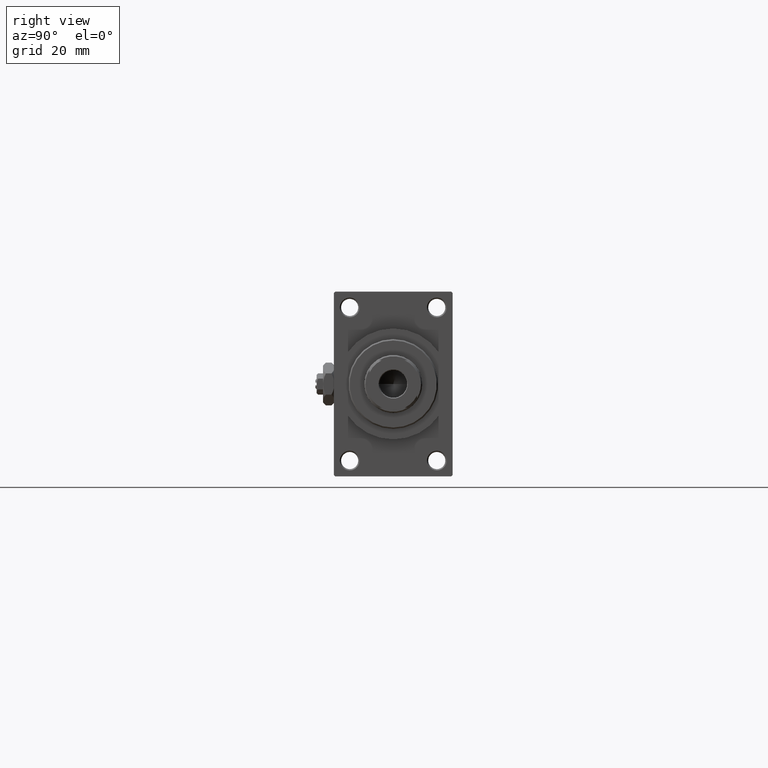
[diagram: clean part render]
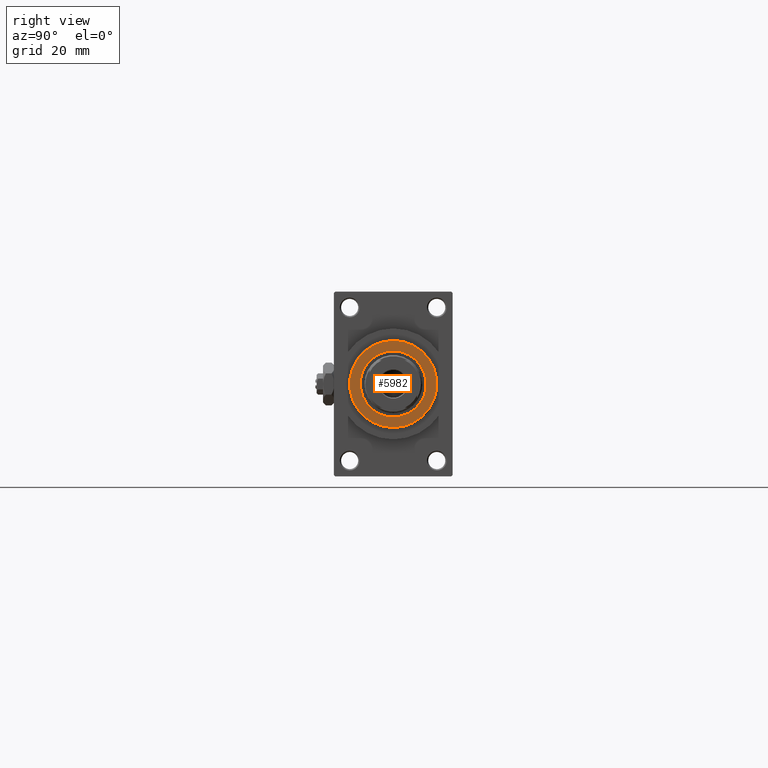
[diagram: same view with one face highlighted and labeled with its STEP entity id]
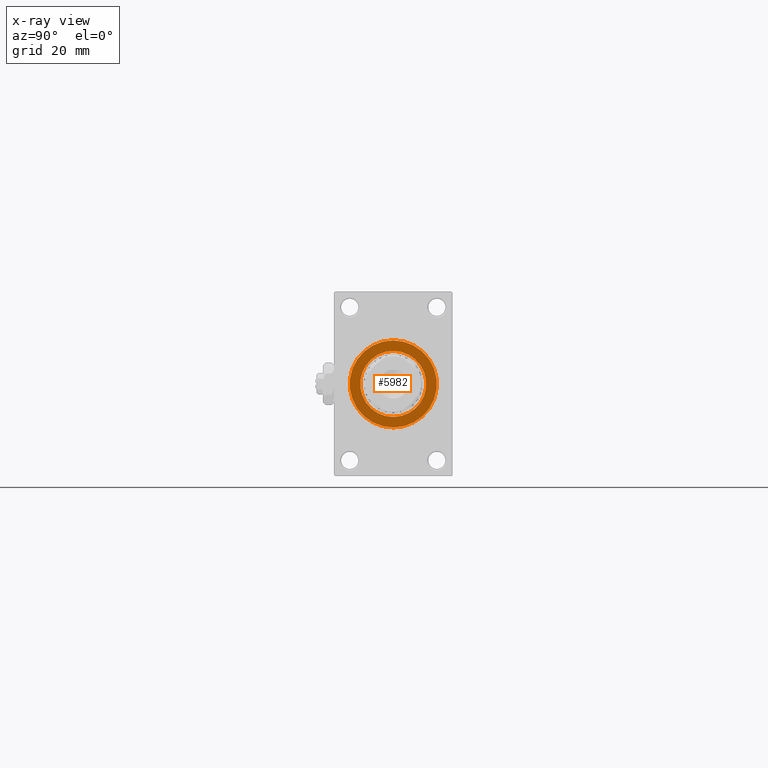
[diagram: x-ray of the same camera — body ghosted, the highlighted face saturated]
A machine part, right view. The second image highlights one B-rep face of the part: STEP entity #5982.
The next image is the same camera in x-ray: the body ghosted, the highlighted face saturated — about 0% of this face is hidden behind the body in this view.
In plain terms, the highlighted planar face has unit normal (1, -0, -0).
Its self-contained STEP definition (entity closure, byte-faithful):
#770 = DIRECTION ( 'NONE',  ( 1.000000000000000000, 0.000000000000000000, 0.000000000000000000 ) ) ;
#1490 = CARTESIAN_POINT ( 'NONE',  ( 12.50000000000000000, 0.000000000000000000, 55.26000000000000512 ) ) ;
#1817 = VERTEX_POINT ( 'NONE', #31748 ) ;
#2998 = CARTESIAN_POINT ( 'NONE',  ( 0.000000000000000000, 0.000000000000000000, 55.26000000000000512 ) ) ;
#5207 = CIRCLE ( 'NONE', #47964, 16.50000000000001421 ) ;
#5350 = DIRECTION ( 'NONE',  ( 0.000000000000000000, 0.000000000000000000, 1.000000000000000000 ) ) ;
#5732 = EDGE_LOOP ( 'NONE', ( #33681, #46864 ) ) ;
#5741 = FACE_BOUND ( 'NONE', #33906, .T. ) ;
#5826 = DIRECTION ( 'NONE',  ( 1.000000000000000000, 0.000000000000000000, 0.000000000000000000 ) ) ;
#5982 = ADVANCED_FACE ( 'NONE', ( #5741, #20869 ), #35982, .T. ) ;
#6368 = AXIS2_PLACEMENT_3D ( 'NONE', #33233, #29025, #32987 ) ;
#9373 = CIRCLE ( 'NONE', #28349, 12.50000000000000000 ) ;
#9507 = AXIS2_PLACEMENT_3D ( 'NONE', #43779, #5350, #5826 ) ;
#9641 = VERTEX_POINT ( 'NONE', #1490 ) ;
#14186 = DIRECTION ( 'NONE',  ( 0.000000000000000000, 0.000000000000000000, 1.000000000000000000 ) ) ;
#14797 = CARTESIAN_POINT ( 'NONE',  ( 0.000000000000000000, 0.000000000000000000, 55.26000000000000512 ) ) ;
#16359 = ORIENTED_EDGE ( 'NONE', *, *, #39844, .F. ) ;
#18250 = VERTEX_POINT ( 'NONE', #46470 ) ;
#18891 = DIRECTION ( 'NONE',  ( 0.000000000000000000, 0.000000000000000000, 1.000000000000000000 ) ) ;
#20226 = EDGE_CURVE ( 'NONE', #18250, #25529, #5207, .T. ) ;
#20869 = FACE_OUTER_BOUND ( 'NONE', #5732, .T. ) ;
#23861 = ORIENTED_EDGE ( 'NONE', *, *, #47464, .F. ) ;
#25529 = VERTEX_POINT ( 'NONE', #35693 ) ;
#26176 = DIRECTION ( 'NONE',  ( 0.000000000000000000, 0.000000000000000000, 1.000000000000000000 ) ) ;
#28349 = AXIS2_PLACEMENT_3D ( 'NONE', #2998, #14186, #41456 ) ;
#29025 = DIRECTION ( 'NONE',  ( 0.000000000000000000, 0.000000000000000000, 1.000000000000000000 ) ) ;
#29896 = DIRECTION ( 'NONE',  ( 1.000000000000000000, 0.000000000000000000, 0.000000000000000000 ) ) ;
#30892 = CIRCLE ( 'NONE', #9507, 12.50000000000000000 ) ;
#31748 = CARTESIAN_POINT ( 'NONE',  ( -12.50000000000000000, 1.530808498934191521E-15, 55.26000000000000512 ) ) ;
#32987 = DIRECTION ( 'NONE',  ( 1.000000000000000000, 0.000000000000000000, -0.000000000000000000 ) ) ;
#33233 = CARTESIAN_POINT ( 'NONE',  ( 0.000000000000000000, 0.000000000000000000, 55.26000000000000512 ) ) ;
#33681 = ORIENTED_EDGE ( 'NONE', *, *, #20226, .T. ) ;
#33906 = EDGE_LOOP ( 'NONE', ( #16359, #23861 ) ) ;
#35693 = CARTESIAN_POINT ( 'NONE',  ( 16.50000000000001421, 2.051283388571817281E-15, 55.26000000000000512 ) ) ;
#35982 = PLANE ( 'NONE',  #6368 ) ;
#38717 = CARTESIAN_POINT ( 'NONE',  ( 0.000000000000000000, 0.000000000000000000, 55.26000000000000512 ) ) ;
#39844 = EDGE_CURVE ( 'NONE', #9641, #1817, #9373, .T. ) ;
#40374 = CIRCLE ( 'NONE', #41992, 16.50000000000001421 ) ;
#41456 = DIRECTION ( 'NONE',  ( 1.000000000000000000, 0.000000000000000000, 0.000000000000000000 ) ) ;
#41992 = AXIS2_PLACEMENT_3D ( 'NONE', #14797, #26176, #29896 ) ;
#43779 = CARTESIAN_POINT ( 'NONE',  ( 0.000000000000000000, 0.000000000000000000, 55.26000000000000512 ) ) ;
#46295 = EDGE_CURVE ( 'NONE', #25529, #18250, #40374, .T. ) ;
#46470 = CARTESIAN_POINT ( 'NONE',  ( -16.50000000000001421, 0.000000000000000000, 55.26000000000000512 ) ) ;
#46864 = ORIENTED_EDGE ( 'NONE', *, *, #46295, .T. ) ;
#47464 = EDGE_CURVE ( 'NONE', #1817, #9641, #30892, .T. ) ;
#47964 = AXIS2_PLACEMENT_3D ( 'NONE', #38717, #18891, #770 ) ;